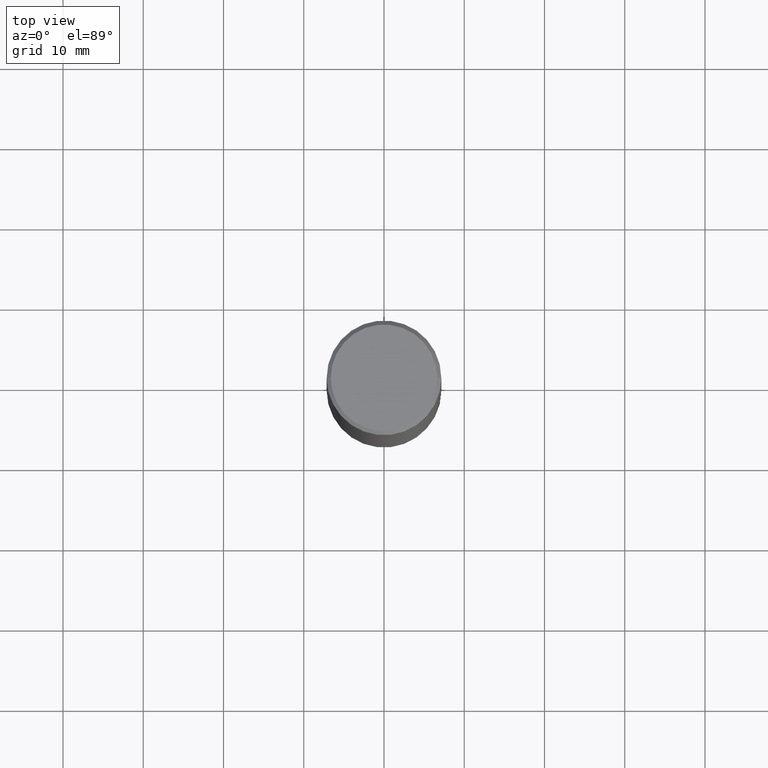
[diagram: clean part render]
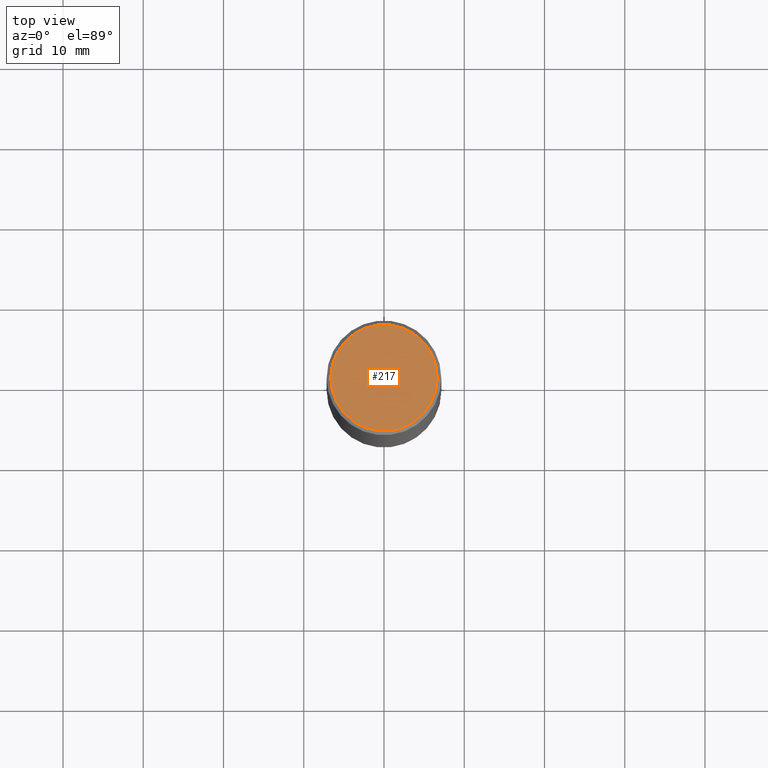
[diagram: same view with one face highlighted and labeled with its STEP entity id]
A machine part, top view. The second image highlights one B-rep face of the part: STEP entity #217.
In plain terms, the highlighted planar face has unit normal (0, -0, -1).
Its self-contained STEP definition (entity closure, byte-faithful):
#3 = CIRCLE ( 'NONE', #112, 0.2612499999999997047 ) ;
#20 = AXIS2_PLACEMENT_3D ( 'NONE', #203, #260, #143 ) ;
#38 = PLANE ( 'NONE',  #45 ) ;
#40 = ORIENTED_EDGE ( 'NONE', *, *, #223, .T. ) ;
#45 = AXIS2_PLACEMENT_3D ( 'NONE', #230, #262, #341 ) ;
#55 = CIRCLE ( 'NONE', #20, 0.2612499999999997047 ) ;
#58 = CARTESIAN_POINT ( 'NONE',  ( 0.000000000000000000, 0.000000000000000000, 0.000000000000000000 ) ) ;
#112 = AXIS2_PLACEMENT_3D ( 'NONE', #58, #167, #354 ) ;
#126 = ORIENTED_EDGE ( 'NONE', *, *, #259, .T. ) ;
#143 = DIRECTION ( 'NONE',  ( 1.000000000000000000, -6.982962677686266711E-15, 4.876176775795935793E-29 ) ) ;
#167 = DIRECTION ( 'NONE',  ( -2.445468806185136597E-29, 3.491481338843145583E-15, 1.000000000000000000 ) ) ;
#168 = FACE_OUTER_BOUND ( 'NONE', #246, .T. ) ;
#203 = CARTESIAN_POINT ( 'NONE',  ( 0.000000000000000000, 0.000000000000000000, 0.000000000000000000 ) ) ;
#214 = CARTESIAN_POINT ( 'NONE',  ( -0.2612499999999997047, 1.859213812933966382E-15, -1.288019758893701630E-29 ) ) ;
#217 = ADVANCED_FACE ( 'NONE', ( #168 ), #38, .F. ) ;
#223 = EDGE_CURVE ( 'NONE', #282, #298, #55, .T. ) ;
#230 = CARTESIAN_POINT ( 'NONE',  ( 1.824298999545535127E-15, 0.2612499999999997047, -9.121494997727707190E-16 ) ) ;
#232 = CARTESIAN_POINT ( 'NONE',  ( 0.2612499999999997047, -1.895824895283957597E-15, 1.300802449975685970E-29 ) ) ;
#246 = EDGE_LOOP ( 'NONE', ( #40, #126 ) ) ;
#259 = EDGE_CURVE ( 'NONE', #298, #282, #3, .T. ) ;
#260 = DIRECTION ( 'NONE',  ( -2.445468806185136597E-29, 3.491481338843145583E-15, 1.000000000000000000 ) ) ;
#262 = DIRECTION ( 'NONE',  ( 2.438088387897960049E-29, -3.491481338843145188E-15, -1.000000000000000000 ) ) ;
#282 = VERTEX_POINT ( 'NONE', #214 ) ;
#298 = VERTEX_POINT ( 'NONE', #232 ) ;
#341 = DIRECTION ( 'NONE',  ( -1.000000000000000000, 6.982962677686265922E-15, -4.876176775795935793E-29 ) ) ;
#354 = DIRECTION ( 'NONE',  ( 1.000000000000000000, -6.982962677686266711E-15, 4.876176775795935793E-29 ) ) ;